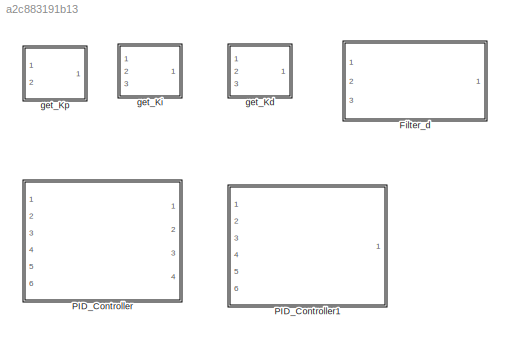
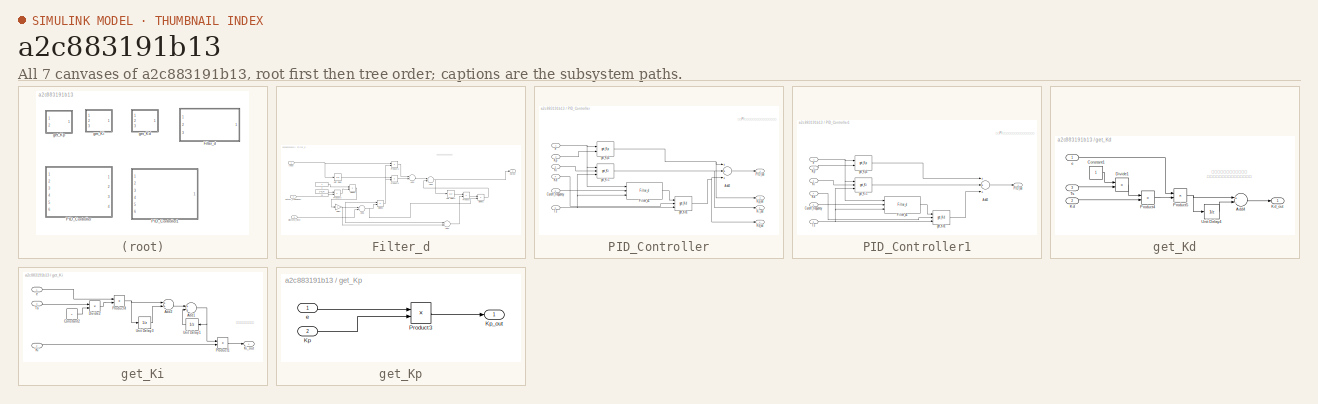
[diagram: thumbnail index - all 7 canvases of the model, root first then tree order]
MODEL slx_a2c883191b13
KIND library
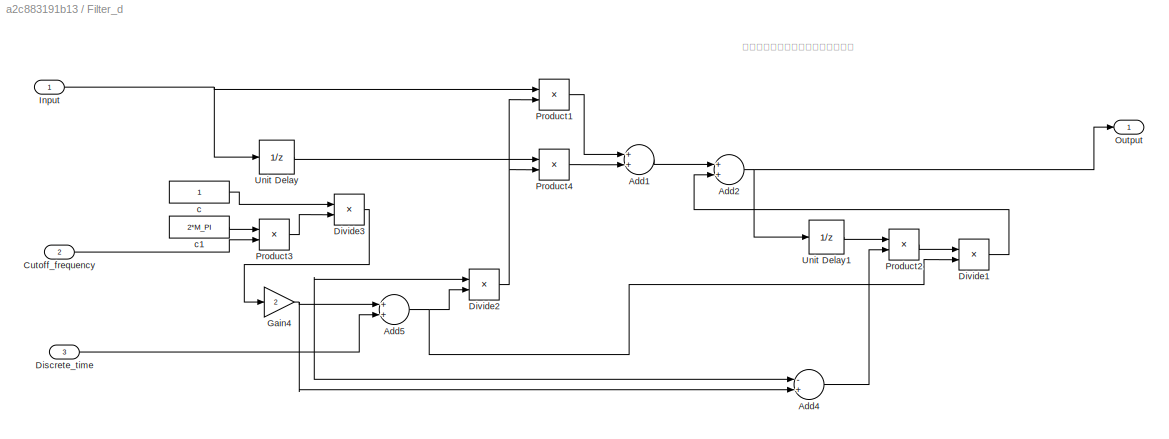
BLOCK [SubSystem] Filter_d
  Description = Tz是时间常数。时间常数一般不小于0.01，否则会振荡。
  Ports = [3, 1]
  RequestExecContextInheritance = off
BLOCK [Sum] Filter_d/Add1
  InputSameDT = off
  OutDataTypeStr = Inherit: Inherit via internal rule
  Ports = [2, 1]
  SaturateOnIntegerOverflow = off
BLOCK [Sum] Filter_d/Add2
  InputSameDT = off
  OutDataTypeStr = Inherit: Inherit via internal rule
  Ports = [2, 1]
  SaturateOnIntegerOverflow = off
BLOCK [Sum] Filter_d/Add4
  InputSameDT = off
  Inputs = -+
  OutDataTypeStr = Inherit: Inherit via internal rule
  Ports = [2, 1]
  SaturateOnIntegerOverflow = off
BLOCK [Sum] Filter_d/Add5
  InputSameDT = off
  OutDataTypeStr = Inherit: Inherit via internal rule
  Ports = [2, 1]
  SaturateOnIntegerOverflow = off
BLOCK [Inport] Filter_d/Cutoff_frequency
  IconDisplay = Port number
  Port = 2
BLOCK [Inport] Filter_d/Discrete_time
  IconDisplay = Port number
  Port = 3
BLOCK [Product] Filter_d/Divide1
  InputSameDT = off
  Inputs = */
  OutDataTypeStr = Inherit: Inherit via internal rule
  Ports = [2, 1]
  RndMeth = Floor
  SaturateOnIntegerOverflow = off
BLOCK [Product] Filter_d/Divide2
  InputSameDT = off
  Inputs = */
  OutDataTypeStr = Inherit: Inherit via internal rule
  Ports = [2, 1]
  RndMeth = Floor
  SaturateOnIntegerOverflow = off
BLOCK [Product] Filter_d/Divide3
  InputSameDT = off
  Inputs = */
  OutDataTypeStr = Inherit: Inherit via internal rule
  Ports = [2, 1]
  RndMeth = Floor
  SaturateOnIntegerOverflow = off
BLOCK [Gain] Filter_d/Gain4
  Gain = 2
  OutDataTypeStr = Inherit: Inherit via internal rule
  ParamDataTypeStr = Inherit: Inherit via internal rule
  SaturateOnIntegerOverflow = off
BLOCK [Inport] Filter_d/Input
  IconDisplay = Port number
BLOCK [Outport] Filter_d/Output
  IconDisplay = Port number
BLOCK [Product] Filter_d/Product1
  InputSameDT = off
  OutDataTypeStr = Inherit: Inherit via internal rule
  Ports = [2, 1]
  SaturateOnIntegerOverflow = off
BLOCK [Product] Filter_d/Product2
  InputSameDT = off
  OutDataTypeStr = Inherit: Inherit via internal rule
  Ports = [2, 1]
  SaturateOnIntegerOverflow = off
BLOCK [Product] Filter_d/Product3
  InputSameDT = off
  OutDataTypeStr = Inherit: Inherit via internal rule
  Ports = [2, 1]
  SaturateOnIntegerOverflow = off
BLOCK [Product] Filter_d/Product4
  InputSameDT = off
  OutDataTypeStr = Inherit: Inherit via internal rule
  Ports = [2, 1]
  SaturateOnIntegerOverflow = off
BLOCK [UnitDelay] Filter_d/Unit Delay
  InputProcessing = Elements as channels (sample based)
  SampleTime = -1
BLOCK [UnitDelay] Filter_d/Unit Delay1
  InputProcessing = Elements as channels (sample based)
  SampleTime = -1
BLOCK [Constant] Filter_d/c
  Description = 低通滤波器的时间常数
BLOCK [Constant] Filter_d/c1
  Description = 低通滤波器的时间常数
  Value = 2*M_PI
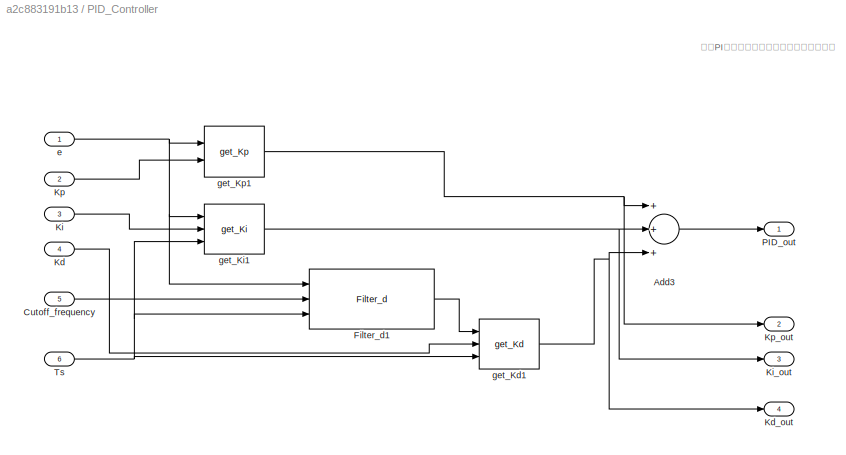
BLOCK [SubSystem] PID_Controller
  Description = PI控制器。
  Ports = [6, 4]
  RequestExecContextInheritance = off
BLOCK [Sum] PID_Controller/Add3
  InputSameDT = off
  Inputs = +++
  OutDataTypeStr = Inherit: Inherit via internal rule
  Ports = [3, 1]
  SaturateOnIntegerOverflow = off
BLOCK [Inport] PID_Controller/Cutoff_frequency
  IconDisplay = Port number
  Port = 5
BLOCK [Reference] PID_Controller/Filter_d1  REF=Lib_AC_PID/Filter_d
  Description = Tz是时间常数。时间常数一般不小于0.01，否则会振荡。
  Ports = [3, 1]
  SourceBlock = Lib_AC_PID/Filter_d
  SourceType = SubSystem
BLOCK [Inport] PID_Controller/Kd
  IconDisplay = Port number
  Port = 4
BLOCK [Outport] PID_Controller/Kd_out
  IconDisplay = Port number
  Port = 4
BLOCK [Inport] PID_Controller/Ki
  IconDisplay = Port number
  Port = 3
BLOCK [Outport] PID_Controller/Ki_out
  IconDisplay = Port number
  Port = 3
BLOCK [Inport] PID_Controller/Kp
  IconDisplay = Port number
  Port = 2
BLOCK [Outport] PID_Controller/Kp_out
  IconDisplay = Port number
  Port = 2
BLOCK [Outport] PID_Controller/PID_out
  IconDisplay = Port number
BLOCK [Inport] PID_Controller/Ts
  IconDisplay = Port number
  Port = 6
BLOCK [Inport] PID_Controller/e
  IconDisplay = Port number
BLOCK [Reference] PID_Controller/get_Kd1  REF=Lib_AC_PID/get_Kd
  Ports = [3, 1]
  SourceBlock = Lib_AC_PID/get_Kd
  SourceType = SubSystem
BLOCK [Reference] PID_Controller/get_Ki1  REF=Lib_AC_PID/get_Ki
  Ports = [3, 1]
  SourceBlock = Lib_AC_PID/get_Ki
  SourceType = SubSystem
BLOCK [Reference] PID_Controller/get_Kp1  REF=Lib_AC_PID/get_Kp
  Ports = [2, 1]
  SourceBlock = Lib_AC_PID/get_Kp
  SourceType = SubSystem
BLOCK [SubSystem] PID_Controller1
  Description = PI控制器。
  Ports = [6, 1]
  RequestExecContextInheritance = off
BLOCK [Sum] PID_Controller1/Add3
  InputSameDT = off
  Inputs = +++
  OutDataTypeStr = Inherit: Inherit via internal rule
  Ports = [3, 1]
  SaturateOnIntegerOverflow = off
BLOCK [Inport] PID_Controller1/Cutoff_frequency
  IconDisplay = Port number
  Port = 5
BLOCK [Reference] PID_Controller1/Filter_d1  REF=Lib_AC_PID/Filter_d
  Description = Tz是时间常数。时间常数一般不小于0.01，否则会振荡。
  Ports = [3, 1]
  SourceBlock = Lib_AC_PID/Filter_d
  SourceType = SubSystem
BLOCK [Inport] PID_Controller1/Kd
  IconDisplay = Port number
  Port = 4
BLOCK [Inport] PID_Controller1/Ki
  IconDisplay = Port number
  Port = 3
BLOCK [Inport] PID_Controller1/Kp
  IconDisplay = Port number
  Port = 2
BLOCK [Outport] PID_Controller1/PID_out
  IconDisplay = Port number
BLOCK [Inport] PID_Controller1/Ts
  IconDisplay = Port number
  Port = 6
BLOCK [Inport] PID_Controller1/e
  IconDisplay = Port number
BLOCK [Reference] PID_Controller1/get_Kd1  REF=Lib_AC_PID/get_Kd
  Ports = [3, 1]
  SourceBlock = Lib_AC_PID/get_Kd
  SourceType = SubSystem
BLOCK [Reference] PID_Controller1/get_Ki1  REF=Lib_AC_PID/get_Ki
  Ports = [3, 1]
  SourceBlock = Lib_AC_PID/get_Ki
  SourceType = SubSystem
BLOCK [Reference] PID_Controller1/get_Kp1  REF=Lib_AC_PID/get_Kp
  Ports = [2, 1]
  SourceBlock = Lib_AC_PID/get_Kp
  SourceType = SubSystem
BLOCK [SubSystem] get_Kd
  Ports = [3, 1]
  RequestExecContextInheritance = off
BLOCK [Sum] get_Kd/Add4
  InputSameDT = off
  Inputs = +-
  OutDataTypeStr = Inherit: Inherit via internal rule
  Ports = [2, 1]
  SaturateOnIntegerOverflow = off
BLOCK [Constant] get_Kd/Constant1
BLOCK [Product] get_Kd/Divide1
  InputSameDT = off
  Inputs = */
  OutDataTypeStr = Inherit: Inherit via internal rule
  Ports = [2, 1]
  RndMeth = Floor
  SaturateOnIntegerOverflow = off
BLOCK [Inport] get_Kd/Kd
  IconDisplay = Port number
  Port = 2
BLOCK [Outport] get_Kd/Kd_out
  IconDisplay = Port number
BLOCK [Product] get_Kd/Product4
  InputSameDT = off
  OutDataTypeStr = Inherit: Inherit via internal rule
  Ports = [2, 1]
  SaturateOnIntegerOverflow = off
BLOCK [Product] get_Kd/Product5
  InputSameDT = off
  OutDataTypeStr = Inherit: Inherit via internal rule
  Ports = [2, 1]
  SaturateOnIntegerOverflow = off
BLOCK [Inport] get_Kd/Ts
  IconDisplay = Port number
  Port = 3
BLOCK [UnitDelay] get_Kd/Unit Delay4
  InputProcessing = Elements as channels (sample based)
  SampleTime = -1
BLOCK [Inport] get_Kd/e
  IconDisplay = Port number
BLOCK [SubSystem] get_Ki
  Ports = [3, 1]
  RequestExecContextInheritance = off
BLOCK [Sum] get_Ki/Add1
  InputSameDT = off
  OutDataTypeStr = Inherit: Inherit via internal rule
  Ports = [2, 1]
  SaturateOnIntegerOverflow = off
BLOCK [Sum] get_Ki/Add2
  InputSameDT = off
  OutDataTypeStr = Inherit: Inherit via internal rule
  Ports = [2, 1]
  SaturateOnIntegerOverflow = off
BLOCK [Constant] get_Ki/Constant2
  Value = 2
BLOCK [Product] get_Ki/Divide2
  InputSameDT = off
  Inputs = */
  OutDataTypeStr = Inherit: Inherit via internal rule
  Ports = [2, 1]
  RndMeth = Floor
  SaturateOnIntegerOverflow = off
BLOCK [Inport] get_Ki/Ki
  IconDisplay = Port number
  Port = 2
BLOCK [Outport] get_Ki/Ki_out
  IconDisplay = Port number
BLOCK [Product] get_Ki/Product1
  InputSameDT = off
  OutDataTypeStr = Inherit: Inherit via internal rule
  Ports = [2, 1]
  SaturateOnIntegerOverflow = off
BLOCK [Product] get_Ki/Product4
  InputSameDT = off
  OutDataTypeStr = Inherit: Inherit via internal rule
  Ports = [2, 1]
  SaturateOnIntegerOverflow = off
BLOCK [Inport] get_Ki/Ts
  IconDisplay = Port number
  Port = 3
BLOCK [UnitDelay] get_Ki/Unit Delay1
  InputProcessing = Elements as channels (sample based)
  SampleTime = -1
BLOCK [UnitDelay] get_Ki/Unit Delay3
  InputProcessing = Elements as channels (sample based)
  SampleTime = -1
BLOCK [Inport] get_Ki/e
  IconDisplay = Port number
BLOCK [SubSystem] get_Kp
  Ports = [2, 1]
  RequestExecContextInheritance = off
BLOCK [Inport] get_Kp/Kp
  IconDisplay = Port number
  Port = 2
BLOCK [Outport] get_Kp/Kp_out
  IconDisplay = Port number
BLOCK [Product] get_Kp/Product3
  InputSameDT = off
  OutDataTypeStr = Inherit: Inherit via internal rule
  Ports = [2, 1]
  SaturateOnIntegerOverflow = off
BLOCK [Inport] get_Kp/e
  IconDisplay = Port number
ANNOTATION Filter_d: 双线性变换，应该根据现在模型修改
ANNOTATION PID_Controller: 虽然PI看上去搭建的怪异，实际测试是对的
ANNOTATION PID_Controller1: 虽然PI看上去搭建的怪异，实际测试是对的
ANNOTATION get_Kd: 微分采用反向差分方法离散 为啥用双线性变换效果反而差呢？
ANNOTATION get_Ki: 积分采用双线性变换
LINE Filter_d/Add1:1 -> Filter_d/Add2:1
NET Filter_d/Add2:1 -> Filter_d/Output:1, Filter_d/Unit Delay1:1
LINE Filter_d/Add4:1 -> Filter_d/Product2:2
NET Filter_d/Add5:1 -> Filter_d/Divide1:2, Filter_d/Divide2:2
LINE Filter_d/Cutoff_frequency:1 -> Filter_d/Product3:2
NET Filter_d/Discrete_time:1 -> Filter_d/Add4:1, Filter_d/Add5:2, Filter_d/Divide2:1
LINE Filter_d/Divide1:1 -> Filter_d/Add2:2
NET Filter_d/Divide2:1 -> Filter_d/Product1:2, Filter_d/Product4:2
LINE Filter_d/Divide3:1 -> Filter_d/Gain4:1
NET Filter_d/Gain4:1 -> Filter_d/Add4:2, Filter_d/Add5:1
NET Filter_d/Input:1 -> Filter_d/Product1:1, Filter_d/Unit Delay:1
LINE Filter_d/Product1:1 -> Filter_d/Add1:1
LINE Filter_d/Product2:1 -> Filter_d/Divide1:1
LINE Filter_d/Product3:1 -> Filter_d/Divide3:2
LINE Filter_d/Product4:1 -> Filter_d/Add1:2
LINE Filter_d/Unit Delay1:1 -> Filter_d/Product2:1
LINE Filter_d/Unit Delay:1 -> Filter_d/Product4:1
LINE Filter_d/c1:1 -> Filter_d/Product3:1
LINE Filter_d/c:1 -> Filter_d/Divide3:1
LINE PID_Controller/Add3:1 -> PID_Controller/PID_out:1
LINE PID_Controller/Cutoff_frequency:1 -> PID_Controller/Filter_d1:2
LINE PID_Controller/Filter_d1:1 -> PID_Controller/get_Kd1:1
LINE PID_Controller/Kd:1 -> PID_Controller/get_Kd1:2
LINE PID_Controller/Ki:1 -> PID_Controller/get_Ki1:2
LINE PID_Controller/Kp:1 -> PID_Controller/get_Kp1:2
NET PID_Controller/Ts:1 -> PID_Controller/Filter_d1:3, PID_Controller/get_Kd1:3, PID_Controller/get_Ki1:3
NET PID_Controller/e:1 -> PID_Controller/Filter_d1:1, PID_Controller/get_Ki1:1, PID_Controller/get_Kp1:1
NET PID_Controller/get_Kd1:1 -> PID_Controller/Add3:3, PID_Controller/Kd_out:1
NET PID_Controller/get_Ki1:1 -> PID_Controller/Add3:2, PID_Controller/Ki_out:1
NET PID_Controller/get_Kp1:1 -> PID_Controller/Add3:1, PID_Controller/Kp_out:1
LINE PID_Controller1/Add3:1 -> PID_Controller1/PID_out:1
LINE PID_Controller1/Cutoff_frequency:1 -> PID_Controller1/Filter_d1:2
LINE PID_Controller1/Filter_d1:1 -> PID_Controller1/get_Kd1:1
LINE PID_Controller1/Kd:1 -> PID_Controller1/get_Kd1:2
LINE PID_Controller1/Ki:1 -> PID_Controller1/get_Ki1:2
LINE PID_Controller1/Kp:1 -> PID_Controller1/get_Kp1:2
NET PID_Controller1/Ts:1 -> PID_Controller1/Filter_d1:3, PID_Controller1/get_Kd1:3, PID_Controller1/get_Ki1:3
NET PID_Controller1/e:1 -> PID_Controller1/Filter_d1:1, PID_Controller1/get_Ki1:1, PID_Controller1/get_Kp1:1
LINE PID_Controller1/get_Kd1:1 -> PID_Controller1/Add3:3
LINE PID_Controller1/get_Ki1:1 -> PID_Controller1/Add3:2
LINE PID_Controller1/get_Kp1:1 -> PID_Controller1/Add3:1
LINE get_Kd/Add4:1 -> get_Kd/Kd_out:1
LINE get_Kd/Constant1:1 -> get_Kd/Divide1:1
LINE get_Kd/Divide1:1 -> get_Kd/Product4:1
LINE get_Kd/Kd:1 -> get_Kd/Product4:2
LINE get_Kd/Product4:1 -> get_Kd/Product5:2
NET get_Kd/Product5:1 -> get_Kd/Add4:1, get_Kd/Unit Delay4:1
LINE get_Kd/Ts:1 -> get_Kd/Divide1:2
LINE get_Kd/Unit Delay4:1 -> get_Kd/Add4:2
LINE get_Kd/e:1 -> get_Kd/Product5:1
NET get_Ki/Add1:1 -> get_Ki/Product1:1, get_Ki/Unit Delay1:1
LINE get_Ki/Add2:1 -> get_Ki/Add1:1
LINE get_Ki/Constant2:1 -> get_Ki/Divide2:2
LINE get_Ki/Divide2:1 -> get_Ki/Product4:2
LINE get_Ki/Ki:1 -> get_Ki/Product1:2
LINE get_Ki/Product1:1 -> get_Ki/Ki_out:1
NET get_Ki/Product4:1 -> get_Ki/Add2:1, get_Ki/Unit Delay3:1
LINE get_Ki/Ts:1 -> get_Ki/Divide2:1
LINE get_Ki/Unit Delay1:1 -> get_Ki/Add1:2
LINE get_Ki/Unit Delay3:1 -> get_Ki/Add2:2
LINE get_Ki/e:1 -> get_Ki/Product4:1
LINE get_Kp/Kp:1 -> get_Kp/Product3:2
LINE get_Kp/Product3:1 -> get_Kp/Kp_out:1
LINE get_Kp/e:1 -> get_Kp/Product3:1
note: NET lines group one-source signal fan-out (src -> all destinations, sorted); 1:1 wires keep LINE
